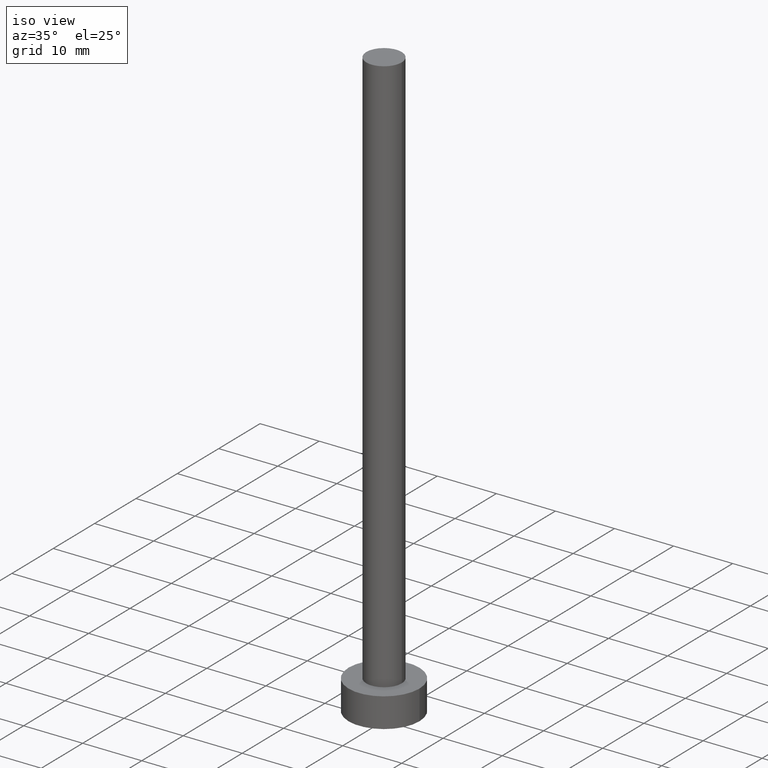
[diagram: clean part render]
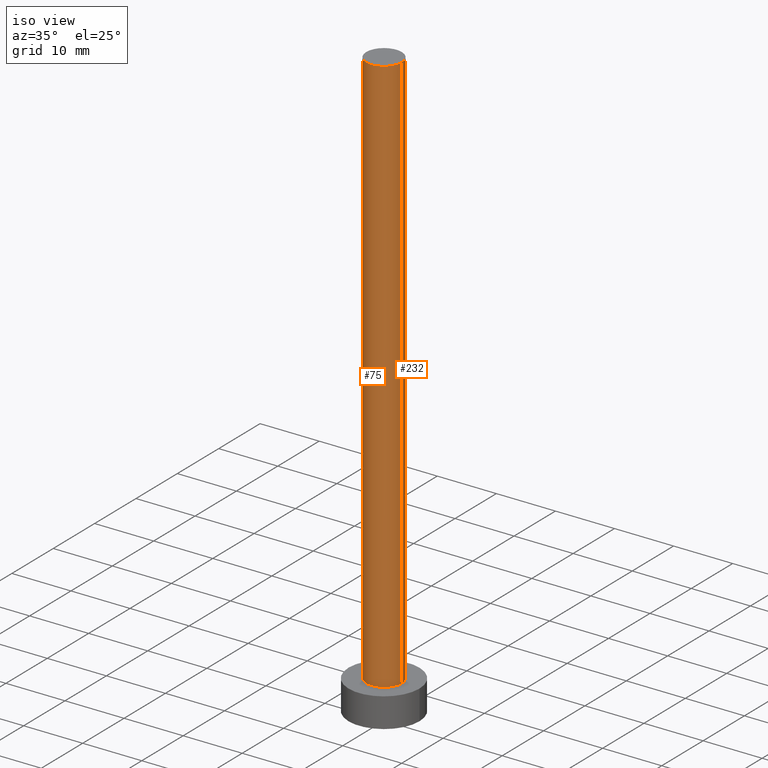
[diagram: same view with one multi-face feature highlighted, each face labeled with its STEP entity id]
A machine part, iso view. The highlighted faces form ONE feature: a constant-radius fillet chain: 2 tangent blend faces with common blend radius 3 mm. The faces share edges in the B-rep.
Their STEP definitions:
[1] entity #75 (Cylinder):
#2 = DIRECTION ( 'NONE',  ( 1.000000000000000000, 0.000000000000000000, 0.000000000000000000 ) ) ;
#17 = CARTESIAN_POINT ( 'NONE',  ( -3.000000000000000444, 0.000000000000000000, 100.0000000000000000 ) ) ;
#21 = EDGE_CURVE ( 'NONE', #166, #163, #65, .T. ) ;
#24 = DIRECTION ( 'NONE',  ( 0.000000000000000000, 0.000000000000000000, 1.000000000000000000 ) ) ;
#26 = CARTESIAN_POINT ( 'NONE',  ( 0.000000000000000000, 0.000000000000000000, 100.0000000000000000 ) ) ;
#36 = LINE ( 'NONE', #231, #243 ) ;
#49 = CARTESIAN_POINT ( 'NONE',  ( 3.000000000000000444, 3.673940397442060361E-16, 100.0000000000000000 ) ) ;
#64 = CARTESIAN_POINT ( 'NONE',  ( 0.000000000000000000, 0.000000000000000000, 100.0000000000000000 ) ) ;
#65 = CIRCLE ( 'NONE', #235, 3.000000000000000444 ) ;
#75 = ADVANCED_FACE ( 'NONE', ( #179 ), #206, .T. ) ;
#78 = AXIS2_PLACEMENT_3D ( 'NONE', #127, #24, #2 ) ;
#83 = LINE ( 'NONE', #155, #228 ) ;
#86 = VERTEX_POINT ( 'NONE', #241 ) ;
#96 = EDGE_CURVE ( 'NONE', #103, #86, #182, .T. ) ;
#99 = CARTESIAN_POINT ( 'NONE',  ( -3.000000000000000444, 0.000000000000000000, 5.000000000000000000 ) ) ;
#103 = VERTEX_POINT ( 'NONE', #99 ) ;
#106 = DIRECTION ( 'NONE',  ( -0.000000000000000000, -0.000000000000000000, -1.000000000000000000 ) ) ;
#108 = ORIENTED_EDGE ( 'NONE', *, *, #111, .T. ) ;
#111 = EDGE_CURVE ( 'NONE', #166, #103, #83, .T. ) ;
#112 = DIRECTION ( 'NONE',  ( -0.000000000000000000, -0.000000000000000000, -1.000000000000000000 ) ) ;
#127 = CARTESIAN_POINT ( 'NONE',  ( 0.000000000000000000, 0.000000000000000000, 5.000000000000000000 ) ) ;
#129 = DIRECTION ( 'NONE',  ( -0.000000000000000000, -0.000000000000000000, -1.000000000000000000 ) ) ;
#131 = DIRECTION ( 'NONE',  ( 1.000000000000000000, 0.000000000000000000, 0.000000000000000000 ) ) ;
#138 = ORIENTED_EDGE ( 'NONE', *, *, #221, .F. ) ;
#152 = DIRECTION ( 'NONE',  ( 0.000000000000000000, 0.000000000000000000, 1.000000000000000000 ) ) ;
#155 = CARTESIAN_POINT ( 'NONE',  ( -3.000000000000000444, 0.000000000000000000, 100.0000000000000000 ) ) ;
#159 = ORIENTED_EDGE ( 'NONE', *, *, #96, .T. ) ;
#163 = VERTEX_POINT ( 'NONE', #49 ) ;
#166 = VERTEX_POINT ( 'NONE', #17 ) ;
#179 = FACE_OUTER_BOUND ( 'NONE', #189, .T. ) ;
#182 = CIRCLE ( 'NONE', #78, 3.000000000000000444 ) ;
#189 = EDGE_LOOP ( 'NONE', ( #138, #215, #108, #159 ) ) ;
#197 = AXIS2_PLACEMENT_3D ( 'NONE', #26, #129, #209 ) ;
#206 = CYLINDRICAL_SURFACE ( 'NONE', #197, 3.000000000000000444 ) ;
#209 = DIRECTION ( 'NONE',  ( -1.000000000000000000, 0.000000000000000000, 0.000000000000000000 ) ) ;
#215 = ORIENTED_EDGE ( 'NONE', *, *, #21, .F. ) ;
#221 = EDGE_CURVE ( 'NONE', #163, #86, #36, .T. ) ;
#228 = VECTOR ( 'NONE', #112, 1000.000000000000000 ) ;
#231 = CARTESIAN_POINT ( 'NONE',  ( 3.000000000000000444, 3.673940397442060361E-16, 100.0000000000000000 ) ) ;
#235 = AXIS2_PLACEMENT_3D ( 'NONE', #64, #152, #131 ) ;
#241 = CARTESIAN_POINT ( 'NONE',  ( 3.000000000000000444, 3.673940397442060361E-16, 5.000000000000000000 ) ) ;
#243 = VECTOR ( 'NONE', #106, 1000.000000000000000 ) ;
[2] entity #232 (Cylinder):
#17 = CARTESIAN_POINT ( 'NONE',  ( -3.000000000000000444, 0.000000000000000000, 100.0000000000000000 ) ) ;
#30 = CARTESIAN_POINT ( 'NONE',  ( 0.000000000000000000, 0.000000000000000000, 100.0000000000000000 ) ) ;
#34 = DIRECTION ( 'NONE',  ( -1.000000000000000000, 0.000000000000000000, 0.000000000000000000 ) ) ;
#35 = ORIENTED_EDGE ( 'NONE', *, *, #221, .T. ) ;
#36 = LINE ( 'NONE', #231, #243 ) ;
#49 = CARTESIAN_POINT ( 'NONE',  ( 3.000000000000000444, 3.673940397442060361E-16, 100.0000000000000000 ) ) ;
#51 = DIRECTION ( 'NONE',  ( 1.000000000000000000, 0.000000000000000000, 0.000000000000000000 ) ) ;
#53 = DIRECTION ( 'NONE',  ( -0.000000000000000000, -0.000000000000000000, -1.000000000000000000 ) ) ;
#58 = AXIS2_PLACEMENT_3D ( 'NONE', #102, #53, #34 ) ;
#77 = ORIENTED_EDGE ( 'NONE', *, *, #176, .F. ) ;
#83 = LINE ( 'NONE', #155, #228 ) ;
#86 = VERTEX_POINT ( 'NONE', #241 ) ;
#91 = CARTESIAN_POINT ( 'NONE',  ( 0.000000000000000000, 0.000000000000000000, 5.000000000000000000 ) ) ;
#95 = AXIS2_PLACEMENT_3D ( 'NONE', #91, #142, #191 ) ;
#99 = CARTESIAN_POINT ( 'NONE',  ( -3.000000000000000444, 0.000000000000000000, 5.000000000000000000 ) ) ;
#102 = CARTESIAN_POINT ( 'NONE',  ( 0.000000000000000000, 0.000000000000000000, 100.0000000000000000 ) ) ;
#103 = VERTEX_POINT ( 'NONE', #99 ) ;
#106 = DIRECTION ( 'NONE',  ( -0.000000000000000000, -0.000000000000000000, -1.000000000000000000 ) ) ;
#110 = EDGE_LOOP ( 'NONE', ( #77, #35, #252, #185 ) ) ;
#111 = EDGE_CURVE ( 'NONE', #166, #103, #83, .T. ) ;
#112 = DIRECTION ( 'NONE',  ( -0.000000000000000000, -0.000000000000000000, -1.000000000000000000 ) ) ;
#119 = CIRCLE ( 'NONE', #128, 3.000000000000000444 ) ;
#128 = AXIS2_PLACEMENT_3D ( 'NONE', #30, #248, #51 ) ;
#142 = DIRECTION ( 'NONE',  ( 0.000000000000000000, 0.000000000000000000, 1.000000000000000000 ) ) ;
#155 = CARTESIAN_POINT ( 'NONE',  ( -3.000000000000000444, 0.000000000000000000, 100.0000000000000000 ) ) ;
#162 = CYLINDRICAL_SURFACE ( 'NONE', #58, 3.000000000000000444 ) ;
#163 = VERTEX_POINT ( 'NONE', #49 ) ;
#165 = FACE_OUTER_BOUND ( 'NONE', #110, .T. ) ;
#166 = VERTEX_POINT ( 'NONE', #17 ) ;
#176 = EDGE_CURVE ( 'NONE', #163, #166, #119, .T. ) ;
#185 = ORIENTED_EDGE ( 'NONE', *, *, #111, .F. ) ;
#191 = DIRECTION ( 'NONE',  ( 1.000000000000000000, 0.000000000000000000, 0.000000000000000000 ) ) ;
#218 = EDGE_CURVE ( 'NONE', #86, #103, #253, .T. ) ;
#221 = EDGE_CURVE ( 'NONE', #163, #86, #36, .T. ) ;
#228 = VECTOR ( 'NONE', #112, 1000.000000000000000 ) ;
#231 = CARTESIAN_POINT ( 'NONE',  ( 3.000000000000000444, 3.673940397442060361E-16, 100.0000000000000000 ) ) ;
#232 = ADVANCED_FACE ( 'NONE', ( #165 ), #162, .T. ) ;
#241 = CARTESIAN_POINT ( 'NONE',  ( 3.000000000000000444, 3.673940397442060361E-16, 5.000000000000000000 ) ) ;
#243 = VECTOR ( 'NONE', #106, 1000.000000000000000 ) ;
#248 = DIRECTION ( 'NONE',  ( 0.000000000000000000, 0.000000000000000000, 1.000000000000000000 ) ) ;
#252 = ORIENTED_EDGE ( 'NONE', *, *, #218, .T. ) ;
#253 = CIRCLE ( 'NONE', #95, 3.000000000000000444 ) ;